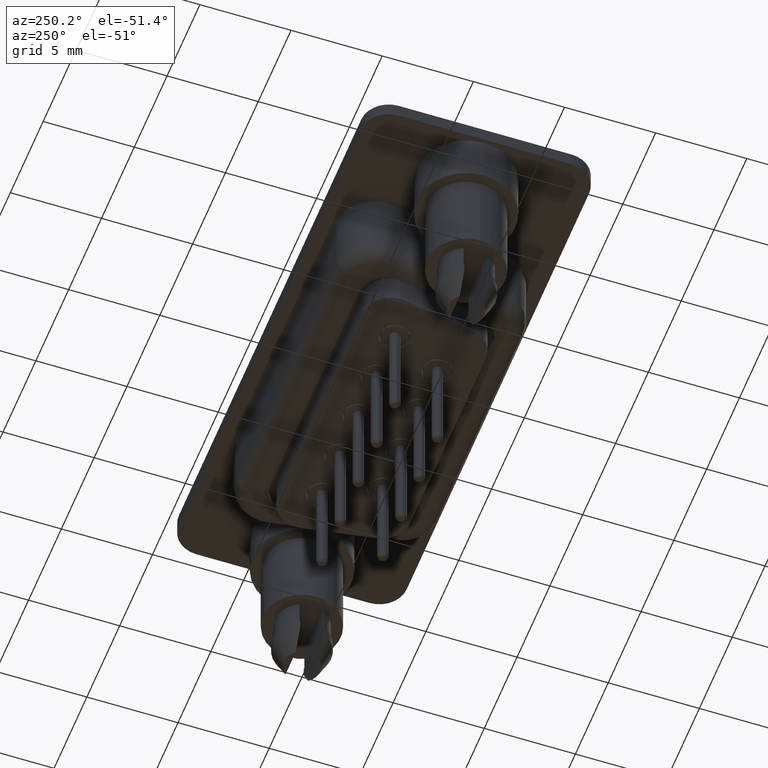
[diagram: clean part render]
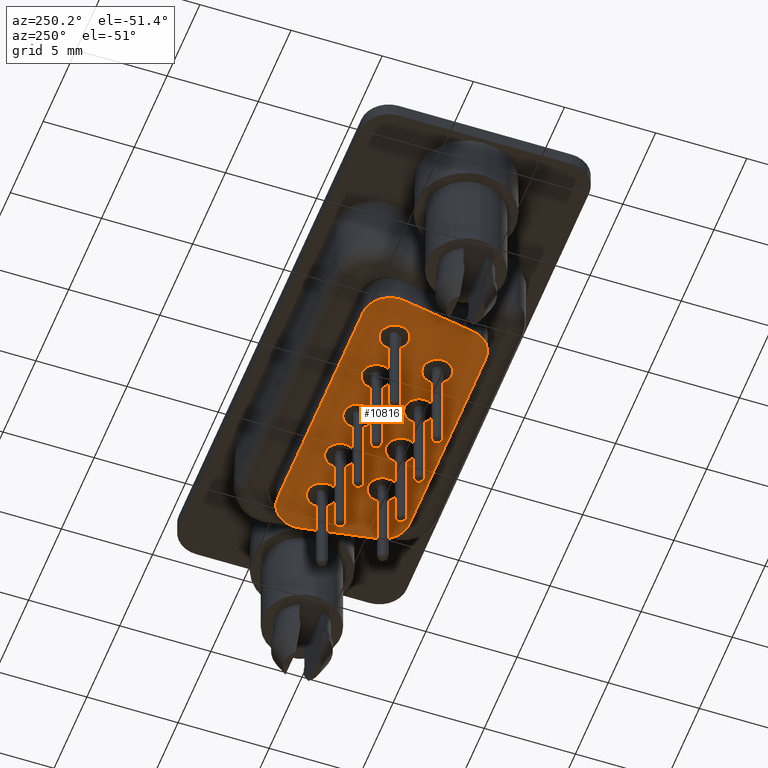
[diagram: same view with one face highlighted and labeled with its STEP entity id]
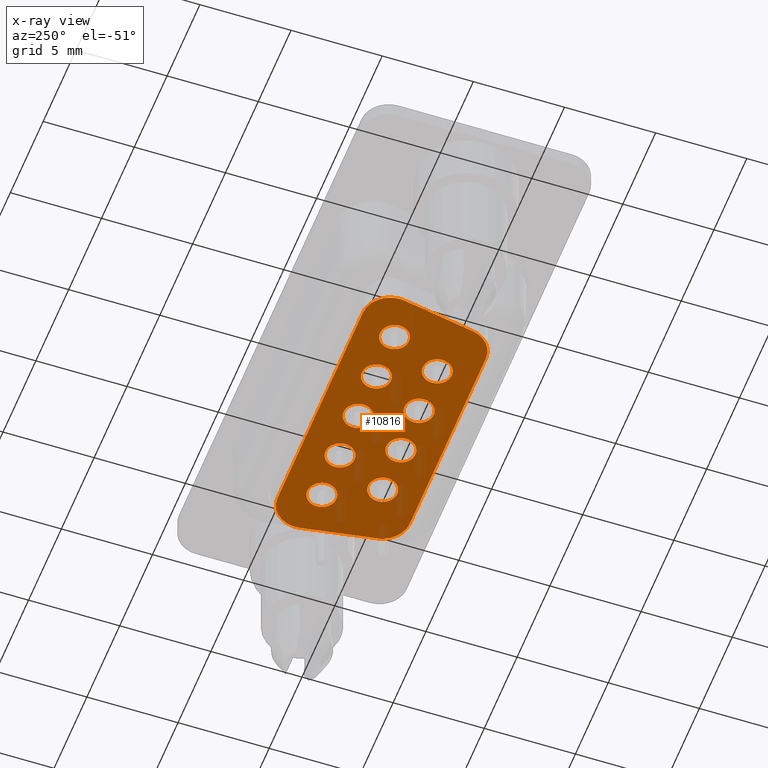
[diagram: x-ray of the same camera — body ghosted, the highlighted face saturated]
A machine part, auxiliary view. The second image highlights one B-rep face of the part: STEP entity #10816.
The next image is the same camera in x-ray: the body ghosted, the highlighted face saturated — about 11% of this face is hidden behind the body in this view.
In plain terms, the highlighted planar face has unit normal (0, 0, 1).
Its self-contained STEP definition (entity closure, byte-faithful):
#13 = CARTESIAN_POINT ( 'NONE',  ( 6.706144415194960295, -1.999999999999998668, -5.699999999999999289 ) ) ;
#31 = EDGE_CURVE ( 'NONE', #13895, #14444, #356, .T. ) ;
#143 = CARTESIAN_POINT ( 'NONE',  ( 13.08499999999999908, -1.424999999999995381, -5.699999999999999289 ) ) ;
#155 = CARTESIAN_POINT ( 'NONE',  ( 6.960000000000000853, 1.415000000000004254, -5.699999999999999289 ) ) ;
#176 = AXIS2_PLACEMENT_3D ( 'NONE', #8837, #7684, #9818 ) ;
#245 = ORIENTED_EDGE ( 'NONE', *, *, #11740, .T. ) ;
#276 = CARTESIAN_POINT ( 'NONE',  ( 6.706144415194960295, -3.499999999999998224, -5.699999999999999289 ) ) ;
#281 = CARTESIAN_POINT ( 'NONE',  ( 7.760000000000002451, 1.415000000000004254, -5.699999999999999289 ) ) ;
#356 = CIRCLE ( 'NONE', #3996, 0.8000000000000020428 ) ;
#371 = CARTESIAN_POINT ( 'NONE',  ( 8.345000000000002416, -1.424999999999995381, -5.699999999999999289 ) ) ;
#388 = ORIENTED_EDGE ( 'NONE', *, *, #5938, .T. ) ;
#453 = DIRECTION ( 'NONE',  ( 1.000000000000000000, 0.0000000000000000000, 0.0000000000000000000 ) ) ;
#467 = LINE ( 'NONE', #8786, #12986 ) ;
#534 = ORIENTED_EDGE ( 'NONE', *, *, #7086, .T. ) ;
#563 = CARTESIAN_POINT ( 'NONE',  ( 20.47637513715721980, 1.739527733499608209, -5.699999999999999289 ) ) ;
#645 = EDGE_CURVE ( 'NONE', #2884, #12796, #1082, .T. ) ;
#739 = CIRCLE ( 'NONE', #8159, 1.499999999999997780 ) ;
#1003 = VECTOR ( 'NONE', #13060, 1000.000000000000000 ) ;
#1036 = CARTESIAN_POINT ( 'NONE',  ( 6.159999999999999254, 1.415000000000004254, -5.699999999999999289 ) ) ;
#1082 = CIRCLE ( 'NONE', #7653, 0.8000000000000003775 ) ;
#1242 = LINE ( 'NONE', #5884, #1003 ) ;
#1245 = FACE_BOUND ( 'NONE', #11148, .T. ) ;
#1393 = EDGE_LOOP ( 'NONE', ( #7645, #5494, #4113, #1801, #7563, #245, #4922, #7145, #3845 ) ) ;
#1394 = PLANE ( 'NONE',  #14432 ) ;
#1425 = CIRCLE ( 'NONE', #6052, 0.8000000000000003775 ) ;
#1472 = CARTESIAN_POINT ( 'NONE',  ( 18.03999999999999915, 1.415000000000004254, -5.699999999999999289 ) ) ;
#1536 = EDGE_LOOP ( 'NONE', ( #12601, #388 ) ) ;
#1539 = DIRECTION ( 'NONE',  ( -1.000000000000000000, 1.122777904919410075E-16, -0.0000000000000000000 ) ) ;
#1555 = CIRCLE ( 'NONE', #2049, 0.8000000000000003775 ) ;
#1595 = EDGE_LOOP ( 'NONE', ( #11281, #7461 ) ) ;
#1701 = CIRCLE ( 'NONE', #10223, 0.8000000000000003775 ) ;
#1725 = AXIS2_PLACEMENT_3D ( 'NONE', #10191, #14935, #12489 ) ;
#1801 = ORIENTED_EDGE ( 'NONE', *, *, #10417, .T. ) ;
#1880 = VERTEX_POINT ( 'NONE', #11115 ) ;
#1886 = LINE ( 'NONE', #12262, #8204 ) ;
#2004 = DIRECTION ( 'NONE',  ( 0.0000000000000000000, 0.0000000000000000000, 1.000000000000000000 ) ) ;
#2025 = CIRCLE ( 'NONE', #9327, 1.499999999999999556 ) ;
#2027 = CARTESIAN_POINT ( 'NONE',  ( 10.31500000000000128, -1.424999999999995381, -5.699999999999999289 ) ) ;
#2049 = AXIS2_PLACEMENT_3D ( 'NONE', #14495, #2731, #7218 ) ;
#2126 = ORIENTED_EDGE ( 'NONE', *, *, #13082, .T. ) ;
#2148 = CARTESIAN_POINT ( 'NONE',  ( 13.88500000000000156, -1.424999999999995381, -5.699999999999999289 ) ) ;
#2214 = EDGE_CURVE ( 'NONE', #5328, #10127, #10316, .T. ) ;
#2346 = DIRECTION ( 'NONE',  ( 1.000000000000000000, 0.0000000000000000000, 0.0000000000000000000 ) ) ;
#2456 = CARTESIAN_POINT ( 'NONE',  ( 13.30000000000000071, 1.415000000000004254, -5.699999999999999289 ) ) ;
#2473 = CARTESIAN_POINT ( 'NONE',  ( 6.000836492361093732, 3.500000000000005773, -5.699999999999999289 ) ) ;
#2613 = AXIS2_PLACEMENT_3D ( 'NONE', #5239, #9900, #12104 ) ;
#2671 = CIRCLE ( 'NONE', #11199, 0.8000000000000020428 ) ;
#2680 = CIRCLE ( 'NONE', #11220, 0.8000000000000012657 ) ;
#2731 = DIRECTION ( 'NONE',  ( 0.0000000000000000000, 0.0000000000000000000, 1.000000000000000000 ) ) ;
#2732 = CARTESIAN_POINT ( 'NONE',  ( 9.730000000000000426, 1.415000000000004254, -5.699999999999999289 ) ) ;
#2776 = DIRECTION ( 'NONE',  ( 0.0000000000000000000, 0.0000000000000000000, 1.000000000000000000 ) ) ;
#2778 = CARTESIAN_POINT ( 'NONE',  ( 8.345000000000002416, -1.424999999999995381, -5.699999999999999289 ) ) ;
#2881 = CARTESIAN_POINT ( 'NONE',  ( 9.145000000000001350, -1.424999999999995381, -5.699999999999999289 ) ) ;
#2884 = VERTEX_POINT ( 'NONE', #6050 ) ;
#2951 = EDGE_LOOP ( 'NONE', ( #3673, #12593 ) ) ;
#2960 = DIRECTION ( 'NONE',  ( -0.1736481776669318577, -0.9848077530122076872, -0.0000000000000000000 ) ) ;
#3014 = EDGE_CURVE ( 'NONE', #9756, #12478, #7625, .T. ) ;
#3060 = AXIS2_PLACEMENT_3D ( 'NONE', #3444, #12674, #6944 ) ;
#3077 = ORIENTED_EDGE ( 'NONE', *, *, #8983, .T. ) ;
#3110 = CARTESIAN_POINT ( 'NONE',  ( 6.960000000000000853, 1.415000000000004254, -5.699999999999999289 ) ) ;
#3163 = VERTEX_POINT ( 'NONE', #13465 ) ;
#3376 = EDGE_CURVE ( 'NONE', #6929, #10890, #5398, .T. ) ;
#3444 = CARTESIAN_POINT ( 'NONE',  ( 11.11500000000000199, -1.424999999999995381, -5.699999999999999289 ) ) ;
#3472 = CIRCLE ( 'NONE', #9091, 0.8000000000000003775 ) ;
#3567 = DIRECTION ( 'NONE',  ( -0.0000000000000000000, 0.0000000000000000000, -1.000000000000000000 ) ) ;
#3673 = ORIENTED_EDGE ( 'NONE', *, *, #2214, .T. ) ;
#3726 = DIRECTION ( 'NONE',  ( 0.0000000000000000000, 0.0000000000000000000, 1.000000000000000000 ) ) ;
#3752 = CARTESIAN_POINT ( 'NONE',  ( 4.523624862842781980, 1.739527733499609319, -5.699999999999999289 ) ) ;
#3834 = DIRECTION ( 'NONE',  ( 1.000000000000000000, 0.0000000000000000000, 0.0000000000000000000 ) ) ;
#3845 = ORIENTED_EDGE ( 'NONE', *, *, #3376, .T. ) ;
#3862 = DIRECTION ( 'NONE',  ( -0.0000000000000000000, 0.0000000000000000000, -1.000000000000000000 ) ) ;
#3872 = CARTESIAN_POINT ( 'NONE',  ( 6.000836492361094621, 2.000000000000007105, -5.699999999999999289 ) ) ;
#3948 = CIRCLE ( 'NONE', #12962, 1.499999999999999556 ) ;
#3996 = AXIS2_PLACEMENT_3D ( 'NONE', #7657, #12309, #5211 ) ;
#4022 = VERTEX_POINT ( 'NONE', #2456 ) ;
#4054 = CARTESIAN_POINT ( 'NONE',  ( 15.85500000000000043, -1.424999999999995381, -5.699999999999999289 ) ) ;
#4109 = DIRECTION ( 'NONE',  ( 1.000000000000000000, 0.0000000000000000000, 0.0000000000000000000 ) ) ;
#4113 = ORIENTED_EDGE ( 'NONE', *, *, #9635, .T. ) ;
#4122 = AXIS2_PLACEMENT_3D ( 'NONE', #1472, #2776, #11849 ) ;
#4190 = CARTESIAN_POINT ( 'NONE',  ( 17.24000000000000199, 1.415000000000004254, -5.699999999999999289 ) ) ;
#4229 = CARTESIAN_POINT ( 'NONE',  ( 16.07000000000000384, 1.415000000000004254, -5.699999999999999289 ) ) ;
#4340 = AXIS2_PLACEMENT_3D ( 'NONE', #3872, #12878, #453 ) ;
#4347 = ORIENTED_EDGE ( 'NONE', *, *, #7089, .T. ) ;
#4654 = EDGE_CURVE ( 'NONE', #7807, #8717, #2680, .T. ) ;
#4688 = CARTESIAN_POINT ( 'NONE',  ( 4.500836492361094621, 2.000000000000007105, -5.699999999999999289 ) ) ;
#4793 = DIRECTION ( 'NONE',  ( 1.000000000000000000, 0.0000000000000000000, 0.0000000000000000000 ) ) ;
#4922 = ORIENTED_EDGE ( 'NONE', *, *, #13635, .T. ) ;
#5211 = DIRECTION ( 'NONE',  ( 1.000000000000000000, 0.0000000000000000000, 0.0000000000000000000 ) ) ;
#5239 = CARTESIAN_POINT ( 'NONE',  ( 12.50000000000000000, 1.415000000000004254, -5.699999999999999289 ) ) ;
#5296 = DIRECTION ( 'NONE',  ( 1.000000000000000000, 0.0000000000000000000, 0.0000000000000000000 ) ) ;
#5319 = VERTEX_POINT ( 'NONE', #2027 ) ;
#5328 = VERTEX_POINT ( 'NONE', #4229 ) ;
#5389 = EDGE_CURVE ( 'NONE', #10127, #5328, #11926, .T. ) ;
#5398 = LINE ( 'NONE', #3752, #10294 ) ;
#5494 = ORIENTED_EDGE ( 'NONE', *, *, #8282, .T. ) ;
#5611 = EDGE_CURVE ( 'NONE', #13711, #7397, #10696, .T. ) ;
#5767 = DIRECTION ( 'NONE',  ( 0.0000000000000000000, 0.0000000000000000000, 1.000000000000000000 ) ) ;
#5884 = CARTESIAN_POINT ( 'NONE',  ( 18.99916350763890804, 3.500000000000003997, -5.699999999999999289 ) ) ;
#5888 = FACE_BOUND ( 'NONE', #1595, .T. ) ;
#5938 = EDGE_CURVE ( 'NONE', #5319, #3163, #6577, .T. ) ;
#6023 = DIRECTION ( 'NONE',  ( 0.0000000000000000000, 0.0000000000000000000, 1.000000000000000000 ) ) ;
#6050 = CARTESIAN_POINT ( 'NONE',  ( 7.545000000000001705, -1.424999999999995381, -5.699999999999999289 ) ) ;
#6052 = AXIS2_PLACEMENT_3D ( 'NONE', #10204, #5767, #2346 ) ;
#6056 = CARTESIAN_POINT ( 'NONE',  ( 19.77106721432335235, -2.260472266500397787, -5.699999999999999289 ) ) ;
#6175 = CARTESIAN_POINT ( 'NONE',  ( 10.53000000000000114, 1.415000000000004254, -5.699999999999999289 ) ) ;
#6246 = DIRECTION ( 'NONE',  ( 1.000000000000000000, 0.0000000000000000000, 0.0000000000000000000 ) ) ;
#6278 = DIRECTION ( 'NONE',  ( 1.000000000000000000, 0.0000000000000000000, 0.0000000000000000000 ) ) ;
#6421 = EDGE_LOOP ( 'NONE', ( #3077, #11390 ) ) ;
#6496 = CARTESIAN_POINT ( 'NONE',  ( 18.29385558480504415, -3.499999999999999556, -5.699999999999999289 ) ) ;
#6577 = CIRCLE ( 'NONE', #3060, 0.8000000000000003775 ) ;
#6636 = EDGE_LOOP ( 'NONE', ( #2126, #13795 ) ) ;
#6929 = VERTEX_POINT ( 'NONE', #12735 ) ;
#6944 = DIRECTION ( 'NONE',  ( 1.000000000000000000, 0.0000000000000000000, 0.0000000000000000000 ) ) ;
#7020 = FACE_BOUND ( 'NONE', #1536, .T. ) ;
#7059 = CARTESIAN_POINT ( 'NONE',  ( 18.29385558480504415, -2.000000000000000000, -5.699999999999999289 ) ) ;
#7066 = VERTEX_POINT ( 'NONE', #6175 ) ;
#7086 = EDGE_CURVE ( 'NONE', #12478, #9756, #2671, .T. ) ;
#7089 = EDGE_CURVE ( 'NONE', #1880, #7066, #1701, .T. ) ;
#7145 = ORIENTED_EDGE ( 'NONE', *, *, #13456, .T. ) ;
#7218 = DIRECTION ( 'NONE',  ( 1.000000000000000000, 0.0000000000000000000, 0.0000000000000000000 ) ) ;
#7397 = VERTEX_POINT ( 'NONE', #9143 ) ;
#7411 = VERTEX_POINT ( 'NONE', #276 ) ;
#7420 = DIRECTION ( 'NONE',  ( 0.0000000000000000000, 0.0000000000000000000, 1.000000000000000000 ) ) ;
#7461 = ORIENTED_EDGE ( 'NONE', *, *, #4654, .T. ) ;
#7563 = ORIENTED_EDGE ( 'NONE', *, *, #8753, .T. ) ;
#7625 = CIRCLE ( 'NONE', #10573, 0.8000000000000020428 ) ;
#7645 = ORIENTED_EDGE ( 'NONE', *, *, #12702, .T. ) ;
#7653 = AXIS2_PLACEMENT_3D ( 'NONE', #371, #9667, #5296 ) ;
#7657 = CARTESIAN_POINT ( 'NONE',  ( 13.88500000000000156, -1.424999999999995381, -5.699999999999999289 ) ) ;
#7684 = DIRECTION ( 'NONE',  ( 0.0000000000000000000, 0.0000000000000000000, 1.000000000000000000 ) ) ;
#7752 = DIRECTION ( 'NONE',  ( 1.000000000000000000, 0.0000000000000000000, 0.0000000000000000000 ) ) ;
#7807 = VERTEX_POINT ( 'NONE', #1036 ) ;
#7910 = CARTESIAN_POINT ( 'NONE',  ( 18.99916350763890804, 3.500000000000003997, -5.699999999999999289 ) ) ;
#7921 = ORIENTED_EDGE ( 'NONE', *, *, #14033, .T. ) ;
#8159 = AXIS2_PLACEMENT_3D ( 'NONE', #8491, #14003, #12848 ) ;
#8204 = VECTOR ( 'NONE', #2960, 1000.000000000000114 ) ;
#8242 = FACE_BOUND ( 'NONE', #13872, .T. ) ;
#8282 = EDGE_CURVE ( 'NONE', #14376, #9141, #10420, .T. ) ;
#8491 = CARTESIAN_POINT ( 'NONE',  ( 18.99916350763890804, 2.000000000000005329, -5.699999999999999289 ) ) ;
#8536 = EDGE_CURVE ( 'NONE', #3163, #5319, #1425, .T. ) ;
#8565 = CARTESIAN_POINT ( 'NONE',  ( 16.65500000000000469, -1.424999999999995381, -5.699999999999999289 ) ) ;
#8577 = DIRECTION ( 'NONE',  ( 1.000000000000000000, 0.0000000000000000000, 0.0000000000000000000 ) ) ;
#8603 = ORIENTED_EDGE ( 'NONE', *, *, #31, .T. ) ;
#8679 = DIRECTION ( 'NONE',  ( 0.0000000000000000000, 0.0000000000000000000, 1.000000000000000000 ) ) ;
#8682 = DIRECTION ( 'NONE',  ( 1.000000000000000000, 0.0000000000000000000, 0.0000000000000000000 ) ) ;
#8717 = VERTEX_POINT ( 'NONE', #281 ) ;
#8753 = EDGE_CURVE ( 'NONE', #10896, #9190, #1886, .T. ) ;
#8786 = CARTESIAN_POINT ( 'NONE',  ( 6.706144415194960295, -3.499999999999998224, -5.699999999999999289 ) ) ;
#8835 = EDGE_CURVE ( 'NONE', #11697, #4022, #14813, .T. ) ;
#8837 = CARTESIAN_POINT ( 'NONE',  ( 12.50000000000000000, 1.415000000000004254, -5.699999999999999289 ) ) ;
#8899 = EDGE_CURVE ( 'NONE', #4022, #11697, #10175, .T. ) ;
#8983 = EDGE_CURVE ( 'NONE', #7397, #13711, #11700, .T. ) ;
#9091 = AXIS2_PLACEMENT_3D ( 'NONE', #2778, #13220, #6278 ) ;
#9141 = VERTEX_POINT ( 'NONE', #2473 ) ;
#9143 = CARTESIAN_POINT ( 'NONE',  ( 18.83999999999999986, 1.415000000000004254, -5.699999999999999289 ) ) ;
#9187 = ORIENTED_EDGE ( 'NONE', *, *, #8899, .T. ) ;
#9190 = VERTEX_POINT ( 'NONE', #6056 ) ;
#9327 = AXIS2_PLACEMENT_3D ( 'NONE', #13, #10678, #13897 ) ;
#9343 = ORIENTED_EDGE ( 'NONE', *, *, #3014, .T. ) ;
#9412 = CARTESIAN_POINT ( 'NONE',  ( 15.27000000000000135, 1.415000000000004254, -5.699999999999999289 ) ) ;
#9413 = CARTESIAN_POINT ( 'NONE',  ( 15.27000000000000135, 1.415000000000004254, -5.699999999999999289 ) ) ;
#9478 = FACE_BOUND ( 'NONE', #14271, .T. ) ;
#9492 = ORIENTED_EDGE ( 'NONE', *, *, #12105, .T. ) ;
#9555 = CIRCLE ( 'NONE', #11264, 0.8000000000000020428 ) ;
#9591 = AXIS2_PLACEMENT_3D ( 'NONE', #9412, #12204, #4109 ) ;
#9603 = CARTESIAN_POINT ( 'NONE',  ( 6.000836492361094621, 2.000000000000007105, -5.699999999999999289 ) ) ;
#9635 = EDGE_CURVE ( 'NONE', #9141, #14249, #1242, .T. ) ;
#9640 = DIRECTION ( 'NONE',  ( 0.0000000000000000000, -0.0000000000000000000, 1.000000000000000000 ) ) ;
#9667 = DIRECTION ( 'NONE',  ( 0.0000000000000000000, 0.0000000000000000000, 1.000000000000000000 ) ) ;
#9676 = CARTESIAN_POINT ( 'NONE',  ( 16.65500000000000469, -1.424999999999995381, -5.699999999999999289 ) ) ;
#9701 = EDGE_LOOP ( 'NONE', ( #7921, #4347 ) ) ;
#9756 = VERTEX_POINT ( 'NONE', #4054 ) ;
#9818 = DIRECTION ( 'NONE',  ( 1.000000000000000000, 0.0000000000000000000, 0.0000000000000000000 ) ) ;
#9900 = DIRECTION ( 'NONE',  ( 0.0000000000000000000, 0.0000000000000000000, 1.000000000000000000 ) ) ;
#10127 = VERTEX_POINT ( 'NONE', #10491 ) ;
#10175 = CIRCLE ( 'NONE', #2613, 0.8000000000000003775 ) ;
#10191 = CARTESIAN_POINT ( 'NONE',  ( 18.03999999999999915, 1.415000000000004254, -5.699999999999999289 ) ) ;
#10204 = CARTESIAN_POINT ( 'NONE',  ( 11.11500000000000199, -1.424999999999995381, -5.699999999999999289 ) ) ;
#10209 = EDGE_CURVE ( 'NONE', #8717, #7807, #14124, .T. ) ;
#10223 = AXIS2_PLACEMENT_3D ( 'NONE', #2732, #3726, #6246 ) ;
#10294 = VECTOR ( 'NONE', #13054, 1000.000000000000000 ) ;
#10316 = CIRCLE ( 'NONE', #9591, 0.8000000000000038192 ) ;
#10417 = EDGE_CURVE ( 'NONE', #14249, #10896, #739, .T. ) ;
#10420 = CIRCLE ( 'NONE', #4340, 1.499999999999999556 ) ;
#10491 = CARTESIAN_POINT ( 'NONE',  ( 14.46999999999999709, 1.415000000000004254, -5.699999999999999289 ) ) ;
#10543 = CARTESIAN_POINT ( 'NONE',  ( 6.000836492361094621, 2.000000000000007105, -5.699999999999999289 ) ) ;
#10573 = AXIS2_PLACEMENT_3D ( 'NONE', #8565, #7420, #3834 ) ;
#10618 = DIRECTION ( 'NONE',  ( 1.000000000000000000, 0.0000000000000000000, -0.0000000000000000000 ) ) ;
#10639 = CARTESIAN_POINT ( 'NONE',  ( 14.68500000000000405, -1.424999999999995381, -5.699999999999999289 ) ) ;
#10678 = DIRECTION ( 'NONE',  ( -0.0000000000000000000, 0.0000000000000000000, -1.000000000000000000 ) ) ;
#10696 = CIRCLE ( 'NONE', #4122, 0.7999999999999986011 ) ;
#10777 = FACE_BOUND ( 'NONE', #6636, .T. ) ;
#10816 = ADVANCED_FACE ( 'NONE', ( #7020, #9478, #8242, #10777, #11693, #1245, #13989, #14129, #5888, #11770 ), #1394, .F. ) ;
#10890 = VERTEX_POINT ( 'NONE', #10929 ) ;
#10896 = VERTEX_POINT ( 'NONE', #563 ) ;
#10913 = VERTEX_POINT ( 'NONE', #6496 ) ;
#10929 = CARTESIAN_POINT ( 'NONE',  ( 4.523624862842781980, 1.739527733499609319, -5.699999999999999289 ) ) ;
#10947 = AXIS2_PLACEMENT_3D ( 'NONE', #9413, #11558, #11775 ) ;
#11115 = CARTESIAN_POINT ( 'NONE',  ( 8.929999999999999716, 1.415000000000004254, -5.699999999999999289 ) ) ;
#11148 = EDGE_LOOP ( 'NONE', ( #9187, #12864 ) ) ;
#11199 = AXIS2_PLACEMENT_3D ( 'NONE', #9676, #14330, #13183 ) ;
#11220 = AXIS2_PLACEMENT_3D ( 'NONE', #155, #6023, #4793 ) ;
#11264 = AXIS2_PLACEMENT_3D ( 'NONE', #2148, #2004, #13602 ) ;
#11281 = ORIENTED_EDGE ( 'NONE', *, *, #10209, .T. ) ;
#11390 = ORIENTED_EDGE ( 'NONE', *, *, #5611, .T. ) ;
#11558 = DIRECTION ( 'NONE',  ( 0.0000000000000000000, 0.0000000000000000000, 1.000000000000000000 ) ) ;
#11657 = CARTESIAN_POINT ( 'NONE',  ( 17.45500000000000540, -1.424999999999995381, -5.699999999999999289 ) ) ;
#11693 = FACE_BOUND ( 'NONE', #9701, .T. ) ;
#11697 = VERTEX_POINT ( 'NONE', #13865 ) ;
#11700 = CIRCLE ( 'NONE', #1725, 0.7999999999999986011 ) ;
#11740 = EDGE_CURVE ( 'NONE', #9190, #10913, #12464, .T. ) ;
#11770 = FACE_OUTER_BOUND ( 'NONE', #1393, .T. ) ;
#11775 = DIRECTION ( 'NONE',  ( 1.000000000000000000, 0.0000000000000000000, 0.0000000000000000000 ) ) ;
#11849 = DIRECTION ( 'NONE',  ( 1.000000000000000000, 0.0000000000000000000, 0.0000000000000000000 ) ) ;
#11926 = CIRCLE ( 'NONE', #10947, 0.8000000000000038192 ) ;
#12104 = DIRECTION ( 'NONE',  ( 1.000000000000000000, 0.0000000000000000000, 0.0000000000000000000 ) ) ;
#12105 = EDGE_CURVE ( 'NONE', #14444, #13895, #9555, .T. ) ;
#12204 = DIRECTION ( 'NONE',  ( 0.0000000000000000000, 0.0000000000000000000, 1.000000000000000000 ) ) ;
#12262 = CARTESIAN_POINT ( 'NONE',  ( 19.77106721432335235, -2.260472266500397787, -5.699999999999999289 ) ) ;
#12309 = DIRECTION ( 'NONE',  ( 0.0000000000000000000, 0.0000000000000000000, 1.000000000000000000 ) ) ;
#12464 = CIRCLE ( 'NONE', #14413, 1.500000000000001332 ) ;
#12478 = VERTEX_POINT ( 'NONE', #11657 ) ;
#12489 = DIRECTION ( 'NONE',  ( 1.000000000000000000, 0.0000000000000000000, 0.0000000000000000000 ) ) ;
#12593 = ORIENTED_EDGE ( 'NONE', *, *, #5389, .T. ) ;
#12601 = ORIENTED_EDGE ( 'NONE', *, *, #8536, .T. ) ;
#12674 = DIRECTION ( 'NONE',  ( 0.0000000000000000000, 0.0000000000000000000, 1.000000000000000000 ) ) ;
#12702 = EDGE_CURVE ( 'NONE', #10890, #14376, #3948, .T. ) ;
#12735 = CARTESIAN_POINT ( 'NONE',  ( 5.228932785676648543, -2.260472266500395122, -5.699999999999999289 ) ) ;
#12796 = VERTEX_POINT ( 'NONE', #2881 ) ;
#12848 = DIRECTION ( 'NONE',  ( -1.000000000000000000, 0.0000000000000000000, 0.0000000000000000000 ) ) ;
#12864 = ORIENTED_EDGE ( 'NONE', *, *, #8835, .T. ) ;
#12878 = DIRECTION ( 'NONE',  ( -0.0000000000000000000, 0.0000000000000000000, -1.000000000000000000 ) ) ;
#12962 = AXIS2_PLACEMENT_3D ( 'NONE', #9603, #3862, #8682 ) ;
#12986 = VECTOR ( 'NONE', #1539, 1000.000000000000000 ) ;
#13054 = DIRECTION ( 'NONE',  ( -0.1736481776669314414, 0.9848077530122079093, -0.0000000000000000000 ) ) ;
#13060 = DIRECTION ( 'NONE',  ( 1.000000000000000000, -1.334574421722017637E-16, -0.0000000000000000000 ) ) ;
#13082 = EDGE_CURVE ( 'NONE', #12796, #2884, #3472, .T. ) ;
#13183 = DIRECTION ( 'NONE',  ( 1.000000000000000000, 0.0000000000000000000, 0.0000000000000000000 ) ) ;
#13220 = DIRECTION ( 'NONE',  ( 0.0000000000000000000, 0.0000000000000000000, 1.000000000000000000 ) ) ;
#13456 = EDGE_CURVE ( 'NONE', #7411, #6929, #2025, .T. ) ;
#13465 = CARTESIAN_POINT ( 'NONE',  ( 11.91500000000000270, -1.424999999999995381, -5.699999999999999289 ) ) ;
#13602 = DIRECTION ( 'NONE',  ( 1.000000000000000000, 0.0000000000000000000, 0.0000000000000000000 ) ) ;
#13635 = EDGE_CURVE ( 'NONE', #10913, #7411, #467, .T. ) ;
#13643 = AXIS2_PLACEMENT_3D ( 'NONE', #3110, #8679, #7752 ) ;
#13711 = VERTEX_POINT ( 'NONE', #4190 ) ;
#13795 = ORIENTED_EDGE ( 'NONE', *, *, #645, .T. ) ;
#13865 = CARTESIAN_POINT ( 'NONE',  ( 11.70000000000000107, 1.415000000000004254, -5.699999999999999289 ) ) ;
#13872 = EDGE_LOOP ( 'NONE', ( #534, #9343 ) ) ;
#13895 = VERTEX_POINT ( 'NONE', #143 ) ;
#13897 = DIRECTION ( 'NONE',  ( 1.000000000000000000, 0.0000000000000000000, 0.0000000000000000000 ) ) ;
#13989 = FACE_BOUND ( 'NONE', #2951, .T. ) ;
#14003 = DIRECTION ( 'NONE',  ( 0.0000000000000000000, 0.0000000000000000000, -1.000000000000000000 ) ) ;
#14033 = EDGE_CURVE ( 'NONE', #7066, #1880, #1555, .T. ) ;
#14124 = CIRCLE ( 'NONE', #13643, 0.8000000000000012657 ) ;
#14129 = FACE_BOUND ( 'NONE', #6421, .T. ) ;
#14249 = VERTEX_POINT ( 'NONE', #7910 ) ;
#14271 = EDGE_LOOP ( 'NONE', ( #9492, #8603 ) ) ;
#14330 = DIRECTION ( 'NONE',  ( 0.0000000000000000000, 0.0000000000000000000, 1.000000000000000000 ) ) ;
#14376 = VERTEX_POINT ( 'NONE', #4688 ) ;
#14413 = AXIS2_PLACEMENT_3D ( 'NONE', #7059, #3567, #8577 ) ;
#14432 = AXIS2_PLACEMENT_3D ( 'NONE', #10543, #9640, #10618 ) ;
#14444 = VERTEX_POINT ( 'NONE', #10639 ) ;
#14495 = CARTESIAN_POINT ( 'NONE',  ( 9.730000000000000426, 1.415000000000004254, -5.699999999999999289 ) ) ;
#14813 = CIRCLE ( 'NONE', #176, 0.8000000000000003775 ) ;
#14935 = DIRECTION ( 'NONE',  ( 0.0000000000000000000, 0.0000000000000000000, 1.000000000000000000 ) ) ;